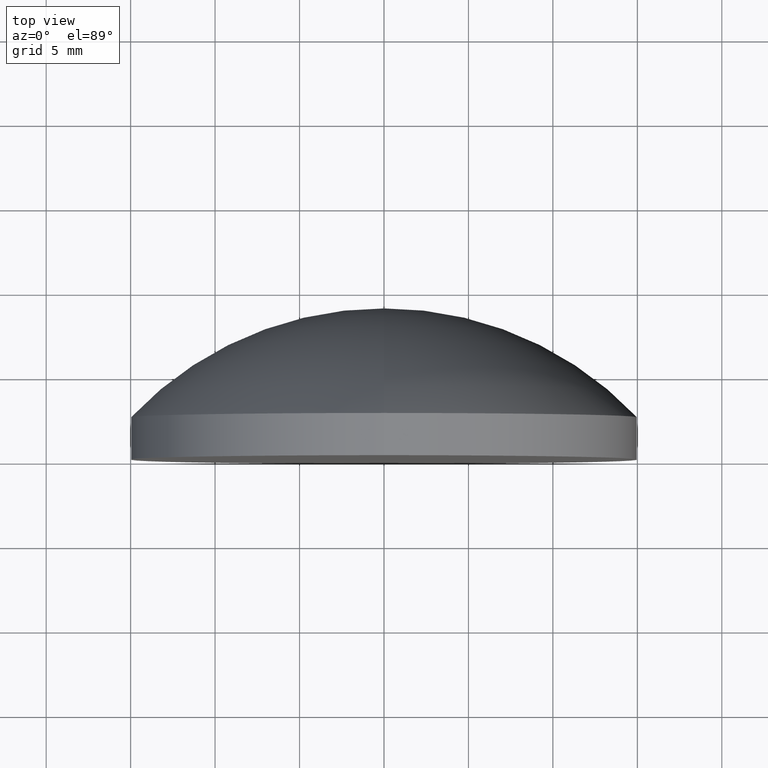
[diagram: clean part render]
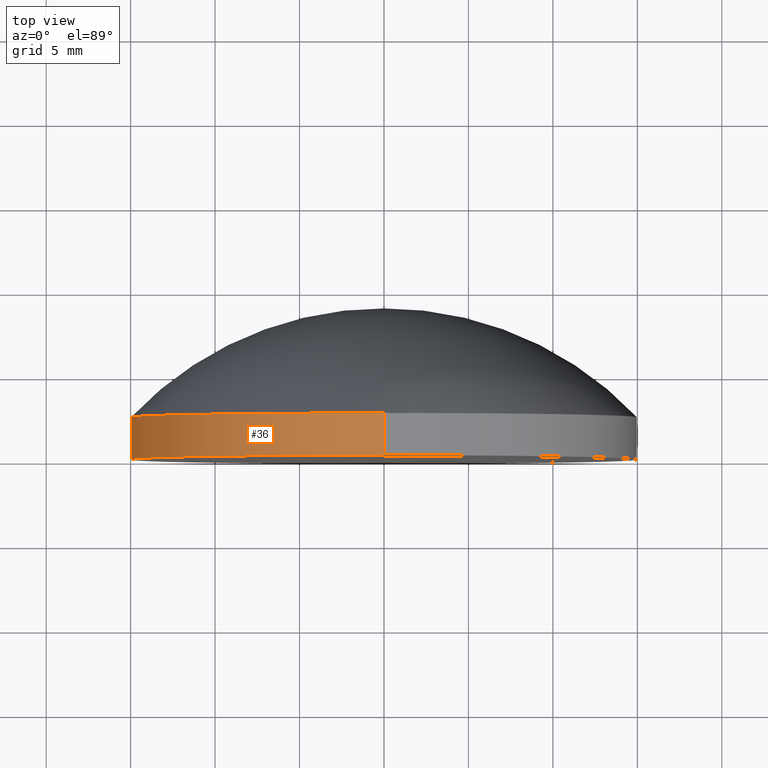
[diagram: same view with one face highlighted and labeled with its STEP entity id]
A machine part, top view. The second image highlights one B-rep face of the part: STEP entity #36.
In plain terms, the highlighted cylindrical surface (partial cylindrical patch) has radius 15 mm, axis along (-0, 1, -0).
Its self-contained STEP definition (entity closure, byte-faithful):
#5 = AXIS2_PLACEMENT_3D ( 'NONE', #117, #156, #116 ) ;
#12 = VERTEX_POINT ( 'NONE', #43 ) ;
#15 = CARTESIAN_POINT ( 'NONE',  ( 1.836970198721029589E-15, 2.499999999999998668, -15.00000000000000000 ) ) ;
#17 = AXIS2_PLACEMENT_3D ( 'NONE', #97, #113, #115 ) ;
#23 = CIRCLE ( 'NONE', #17, 15.00000000000000000 ) ;
#31 = CARTESIAN_POINT ( 'NONE',  ( 0.000000000000000000, 8.949999999999999289, 15.00000000000000000 ) ) ;
#34 = EDGE_CURVE ( 'NONE', #168, #123, #151, .T. ) ;
#36 = ADVANCED_FACE ( 'NONE', ( #110 ), #171, .T. ) ;
#40 = VECTOR ( 'NONE', #199, 1000.000000000000000 ) ;
#41 = ORIENTED_EDGE ( 'NONE', *, *, #118, .T. ) ;
#43 = CARTESIAN_POINT ( 'NONE',  ( 0.000000000000000000, -1.734723475976807094E-15, 15.00000000000000000 ) ) ;
#44 = DIRECTION ( 'NONE',  ( -0.000000000000000000, 1.000000000000000000, -0.000000000000000000 ) ) ;
#45 = AXIS2_PLACEMENT_3D ( 'NONE', #128, #161, #70 ) ;
#46 = EDGE_CURVE ( 'NONE', #123, #173, #23, .T. ) ;
#63 = CARTESIAN_POINT ( 'NONE',  ( 1.836970198721029589E-15, 8.949999999999999289, -15.00000000000000000 ) ) ;
#70 = DIRECTION ( 'NONE',  ( 0.000000000000000000, 0.000000000000000000, 1.000000000000000000 ) ) ;
#72 = CARTESIAN_POINT ( 'NONE',  ( 1.836970198721029589E-15, -1.734723475976807094E-15, -15.00000000000000000 ) ) ;
#97 = CARTESIAN_POINT ( 'NONE',  ( 0.000000000000000000, 2.499999999999998668, 0.000000000000000000 ) ) ;
#99 = VECTOR ( 'NONE', #44, 1000.000000000000000 ) ;
#102 = ORIENTED_EDGE ( 'NONE', *, *, #186, .T. ) ;
#110 = FACE_OUTER_BOUND ( 'NONE', #111, .T. ) ;
#111 = EDGE_LOOP ( 'NONE', ( #196, #102, #41, #135 ) ) ;
#113 = DIRECTION ( 'NONE',  ( -0.000000000000000000, 1.000000000000000000, -0.000000000000000000 ) ) ;
#115 = DIRECTION ( 'NONE',  ( 0.000000000000000000, 0.000000000000000000, 1.000000000000000000 ) ) ;
#116 = DIRECTION ( 'NONE',  ( 0.000000000000000000, 0.000000000000000000, 1.000000000000000000 ) ) ;
#117 = CARTESIAN_POINT ( 'NONE',  ( 0.000000000000000000, 8.949999999999999289, 0.000000000000000000 ) ) ;
#118 = EDGE_CURVE ( 'NONE', #12, #173, #200, .T. ) ;
#121 = CIRCLE ( 'NONE', #45, 15.00000000000000000 ) ;
#123 = VERTEX_POINT ( 'NONE', #15 ) ;
#128 = CARTESIAN_POINT ( 'NONE',  ( 0.000000000000000000, -1.734723475976807094E-15, 0.000000000000000000 ) ) ;
#132 = CARTESIAN_POINT ( 'NONE',  ( 0.000000000000000000, 2.499999999999998668, 15.00000000000000000 ) ) ;
#135 = ORIENTED_EDGE ( 'NONE', *, *, #46, .F. ) ;
#151 = LINE ( 'NONE', #63, #99 ) ;
#156 = DIRECTION ( 'NONE',  ( -0.000000000000000000, 1.000000000000000000, -0.000000000000000000 ) ) ;
#161 = DIRECTION ( 'NONE',  ( -0.000000000000000000, 1.000000000000000000, -0.000000000000000000 ) ) ;
#168 = VERTEX_POINT ( 'NONE', #72 ) ;
#171 = CYLINDRICAL_SURFACE ( 'NONE', #5, 15.00000000000000000 ) ;
#173 = VERTEX_POINT ( 'NONE', #132 ) ;
#186 = EDGE_CURVE ( 'NONE', #168, #12, #121, .T. ) ;
#196 = ORIENTED_EDGE ( 'NONE', *, *, #34, .F. ) ;
#199 = DIRECTION ( 'NONE',  ( -0.000000000000000000, 1.000000000000000000, -0.000000000000000000 ) ) ;
#200 = LINE ( 'NONE', #31, #40 ) ;